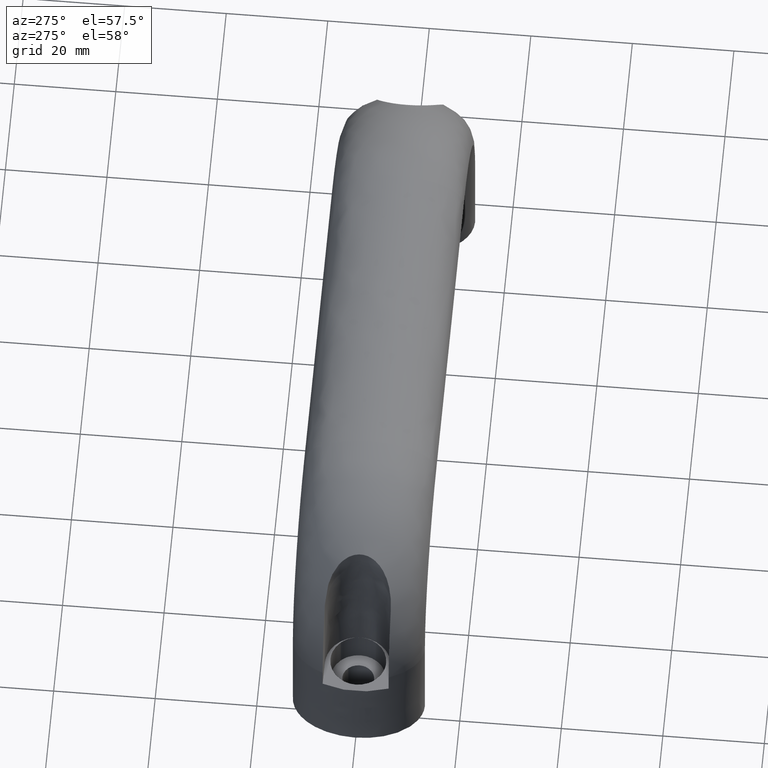
[diagram: clean part render]
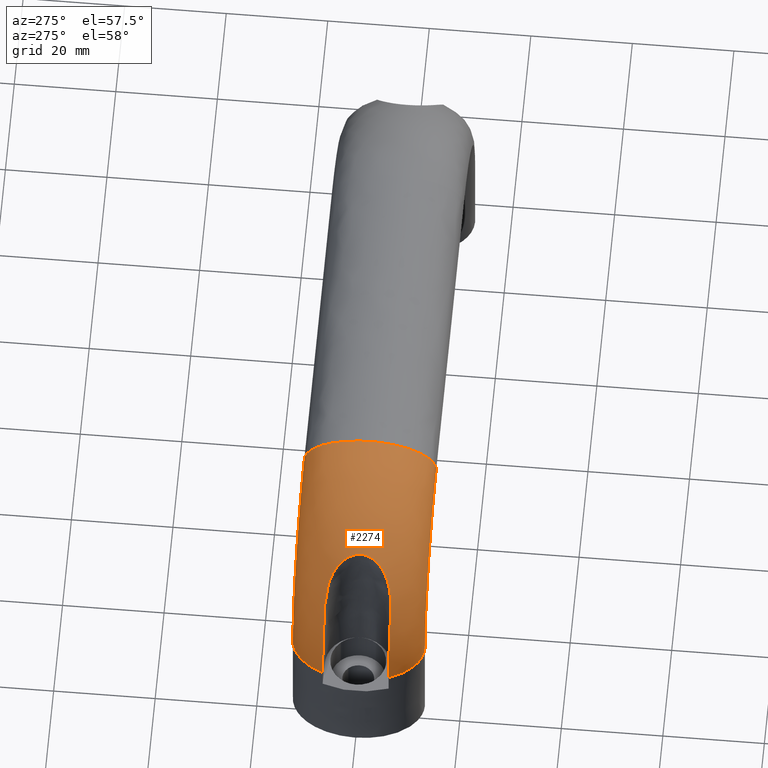
[diagram: same view with one face highlighted and labeled with its STEP entity id]
A machine part, auxiliary view. The second image highlights one B-rep face of the part: STEP entity #2274.
In plain terms, the highlighted face is a freeform B-spline surface patch.
Its self-contained STEP definition (entity closure, byte-faithful):
#1174=CARTESIAN_POINT('',(-5.853663334117329,-6.499999999999459,21.0));
#1175=VERTEX_POINT('',#1174);
#1181=CARTESIAN_POINT('',(-1.000000340339208,-6.500000000000000,38.182549847192597));
#1182=VERTEX_POINT('',#1181);
#1183=CARTESIAN_POINT('',(-5.853663334117329,-6.499999999999459,21.0));
#1184=CARTESIAN_POINT('',(-5.853663334118006,-6.499999999999584,25.301237633519730));
#1185=CARTESIAN_POINT('',(-4.998570350841812,-6.499999999999717,29.599377028204110));
#1186=CARTESIAN_POINT('',(-2.691898080268570,-6.499999999999898,35.168176507776849));
#1187=CARTESIAN_POINT('',(-1.903660305799363,-6.499999999999949,36.710772062103693));
#1188=CARTESIAN_POINT('',(-1.000000340339208,-6.500000000000000,38.182549847192597));
#1189=B_SPLINE_CURVE_WITH_KNOTS('',3,(#1183,#1184,#1185,#1186,#1187,#1188),.UNSPECIFIED.,.F.,.U.,(4,2,4),(0.114061865830815,0.168452139364120,0.190295225677412),.UNSPECIFIED.);
#1190=EDGE_CURVE('',#1175,#1182,#1189,.T.);
#1219=CARTESIAN_POINT('',(-1.000000340339208,6.500000000000000,38.182549847164204));
#1220=VERTEX_POINT('',#1219);
#1229=CARTESIAN_POINT('',(-1.000000340339208,6.500000000000000,38.182549847164204));
#1230=CARTESIAN_POINT('',(-0.689212819800059,6.500000016272797,38.688724930215237));
#1231=CARTESIAN_POINT('',(-0.374075039152050,6.477785489742370,39.187420523620602));
#1232=CARTESIAN_POINT('',(0.262488260931114,6.384325359718156,40.170530579333388));
#1233=CARTESIAN_POINT('',(0.583925252683703,6.313138619210530,40.654949402668663));
#1234=CARTESIAN_POINT('',(1.230995051490858,6.114507299176249,41.609429837873002));
#1235=CARTESIAN_POINT('',(1.556647177267556,5.987184864617493,42.079503514974839));
#1236=CARTESIAN_POINT('',(2.046602365477647,5.744686316475324,42.773056789216007));
#1237=CARTESIAN_POINT('',(2.210164333353672,5.655218039730497,43.002306576821418));
#1238=CARTESIAN_POINT('',(2.455602974931447,5.506175588432599,43.343073584307412));
#1239=CARTESIAN_POINT('',(2.537431224066661,5.454015233107734,43.456143759502481));
#1240=CARTESIAN_POINT('',(2.701064075595249,5.344326574631365,43.681199155961188));
#1241=CARTESIAN_POINT('',(2.782462926104098,5.287066613627396,43.792625824429692));
#1242=CARTESIAN_POINT('',(3.024917935715405,5.107879429656031,44.123028648877572));
#1243=CARTESIAN_POINT('',(3.184384601761754,4.978481909081930,44.338334925381822));
#1244=CARTESIAN_POINT('',(3.497890522714100,4.697162703185287,44.758082049808401));
#1245=CARTESIAN_POINT('',(3.651937882009365,4.545261192519825,44.962530213740642));
#1246=CARTESIAN_POINT('',(3.877792939857300,4.297629274082391,45.259996110071832));
#1247=CARTESIAN_POINT('',(3.952376915882346,4.211552455401861,45.357836290725643));
#1248=CARTESIAN_POINT('',(4.098180596006499,4.033827687453701,45.548408745787412));
#1249=CARTESIAN_POINT('',(4.169506678531061,3.942084983980294,45.641282978532537));
#1250=CARTESIAN_POINT('',(4.378352346568787,3.657684966939383,45.912314188026208));
#1251=CARTESIAN_POINT('',(4.510778420456677,3.455918769203266,46.082928889690301));
#1252=CARTESIAN_POINT('',(4.759114404045350,3.024012999280668,46.401169422606444));
#1253=CARTESIAN_POINT('',(4.875061940803711,2.793933779644034,46.548842216368477));
#1254=CARTESIAN_POINT('',(5.006838383239718,2.484435310278997,46.716008080503919));
#1255=CARTESIAN_POINT('',(5.032522817386089,2.421428612553041,46.748553447625888));
#1256=CARTESIAN_POINT('',(5.081985477336311,2.294362813820903,46.811168827993320));
#1257=CARTESIAN_POINT('',(5.105829370602249,2.230153760895030,46.841322202151169));
#1258=CARTESIAN_POINT('',(5.174618263543223,2.035446314723961,46.928240773261450));
#1259=CARTESIAN_POINT('',(5.216825030205966,1.902871255317507,46.981470758664223));
#1260=CARTESIAN_POINT('',(5.293407149587009,1.631826865827169,47.077943708607798));
#1261=CARTESIAN_POINT('',(5.327784210271009,1.493358854146965,47.121188941667583));
#1262=CARTESIAN_POINT('',(5.372959001766256,1.280873522855859,47.177980241465448));
#1263=CARTESIAN_POINT('',(5.386950683721111,1.209246715532792,47.195562586542643));
#1264=CARTESIAN_POINT('',(5.412693724130936,1.064319433160781,47.227904645716379));
#1265=CARTESIAN_POINT('',(5.424395383722931,0.991255849456206,47.242601935386261));
#1266=CARTESIAN_POINT('',(5.476510816180594,0.626031098082335,47.308052846437363));
#1267=CARTESIAN_POINT('',(5.498365438288885,0.331247702451536,47.335504732420297));
#1268=CARTESIAN_POINT('',(5.500685471526752,-0.114926075149209,47.338422369673040));
#1269=CARTESIAN_POINT('',(5.496364551257758,-0.264319932602838,47.332987927375378));
#1270=CARTESIAN_POINT('',(5.481982390204752,-0.489447285684390,47.314921560174852));
#1271=CARTESIAN_POINT('',(5.475893475569631,-0.564221561934636,47.307274283291918));
#1272=CARTESIAN_POINT('',(5.461271999545220,-0.712394852430750,47.288912449287992));
#1273=CARTESIAN_POINT('',(5.452730908116130,-0.785931328544100,47.278187167378583));
#1274=CARTESIAN_POINT('',(5.404069381569491,-1.150948725288272,47.217077024028718));
#1275=CARTESIAN_POINT('',(5.346175699317252,-1.434481806671780,47.144381478564902));
#1276=CARTESIAN_POINT('',(5.252178206605093,-1.779149495292529,47.026011038114362));
#1277=CARTESIAN_POINT('',(5.232299506900318,-1.847536294668584,47.000963402534389));
#1278=CARTESIAN_POINT('',(5.190859232061210,-1.981971107920071,46.948707657315531));
#1279=CARTESIAN_POINT('',(5.169249851015953,-2.048199982293408,46.921439361182372));
#1280=CARTESIAN_POINT('',(5.101901658509220,-2.244073019501732,46.836379958425908));
#1281=CARTESIAN_POINT('',(5.053647766449441,-2.370909197318161,46.775340853699873));
#1282=CARTESIAN_POINT('',(4.899788969603933,-2.741156128875241,46.580279871892103));
#1283=CARTESIAN_POINT('',(4.785133665016351,-2.974358450601278,46.434376539548943));
#1284=CARTESIAN_POINT('',(4.628961360989541,-3.250973735458134,46.234397793145327));
#1285=CARTESIAN_POINT('',(4.597072577991827,-3.305552547935962,46.193506610032003));
#1286=CARTESIAN_POINT('',(4.532535432686103,-3.412469893866728,46.110623038849852));
#1287=CARTESIAN_POINT('',(4.499828152460424,-3.464915281169077,46.068555289393252));
#1288=CARTESIAN_POINT('',(4.400474538803194,-3.619373592886223,45.940563372272273));
#1289=CARTESIAN_POINT('',(4.332598966671378,-3.718513981948061,45.852853640924202));
#1290=CARTESIAN_POINT('',(4.124619641980001,-4.005509383118658,45.583160606391232));
#1291=CARTESIAN_POINT('',(3.980187428753045,-4.182989510816854,45.394643276441450));
#1292=CARTESIAN_POINT('',(3.681987254477161,-4.514273299438989,45.002282988161483));
#1293=CARTESIAN_POINT('',(3.528149336353248,-4.668105271653232,44.798348338777913));
#1294=CARTESIAN_POINT('',(3.212914745457522,-4.954461886730045,44.376737959463703));
#1295=CARTESIAN_POINT('',(3.053599763602717,-5.085126641572438,44.161847748087069));
#1296=CARTESIAN_POINT('',(2.572016949189415,-5.445312748777830,43.506308444617332));
#1297=CARTESIAN_POINT('',(2.246173655385827,-5.643332864112722,43.054876009694489));
#1298=CARTESIAN_POINT('',(1.753972342858077,-5.890615302223248,42.359115872606168));
#1299=CARTESIAN_POINT('',(1.589311902334279,-5.964654037302544,42.124067386135899));
#1300=CARTESIAN_POINT('',(1.341773296146987,-6.064157510117549,41.766992764913432));
#1301=CARTESIAN_POINT('',(1.259168528611842,-6.095396220738266,41.647216571663392));
#1302=CARTESIAN_POINT('',(1.093826840812898,-6.154151987817073,41.406182424019562));
#1303=CARTESIAN_POINT('',(1.011118158348042,-6.181654249835973,41.284963918348240));
#1304=CARTESIAN_POINT('',(0.599112002362051,-6.309672652816409,40.677795653967912));
#1305=CARTESIAN_POINT('',(0.272999800482566,-6.382418834764922,40.186583435192162));
#1306=CARTESIAN_POINT('',(-0.370530576990195,-6.477620467416236,39.193071878377133));
#1307=CARTESIAN_POINT('',(-0.687957252026364,-6.500000016338412,38.690769855087943));
#1308=CARTESIAN_POINT('',(-1.000000340339208,-6.500000000000000,38.182549847192597));
#1309=B_SPLINE_CURVE_WITH_KNOTS('',3,(#1229,#1230,#1231,#1232,#1233,#1234,#1235,#1236,#1237,#1238,#1239,#1240,#1241,#1242,#1243,#1244,#1245,#1246,#1247,#1248,#1249,#1250,#1251,#1252,#1253,#1254,#1255,#1256,#1257,#1258,#1259,#1260,#1261,#1262,#1263,#1264,#1265,#1266,#1267,#1268,#1269,#1270,#1271,#1272,#1273,#1274,#1275,#1276,#1277,#1278,#1279,#1280,#1281,#1282,#1283,#1284,#1285,#1286,#1287,#1288,#1289,#1290,#1291,#1292,#1293,#1294,#1295,#1296,#1297,#1298,#1299,#1300,#1301,#1302,#1303,#1304,#1305,#1306,#1307,#1308),.UNSPECIFIED.,.F.,.U.,(4,2,2,2,2,2,2,2,2,2,2,2,2,2,2,2,2,2,2,2,2,2,2,2,2,2,2,2,2,2,2,2,2,2,2,2,2,2,2,4),(0.0,0.062500000000002,0.125000000000004,0.187500000000006,0.218750000000007,0.234375000000008,0.250000000000008,0.281250000000008,0.312500000000009,0.328125000000008,0.343750000000008,0.375000000000008,0.406250000000008,0.414062500000008,0.421875000000008,0.437500000000007,0.453125000000007,0.460937500000007,0.468750000000007,0.500000000000007,0.515625000000007,0.523437500000007,0.531250000000007,0.562500000000007,0.570312500000007,0.578125000000007,0.593750000000007,0.625000000000007,0.632812500000007,0.640625000000006,0.656250000000006,0.687500000000005,0.718750000000004,0.750000000000004,0.812500000000002,0.843750000000001,0.859375000000001,0.875000000000001,0.937500000000001,1.0),.UNSPECIFIED.);
#1310=EDGE_CURVE('',#1220,#1182,#1309,.T.);
#1320=CARTESIAN_POINT('',(-5.853663334117170,6.499999999999920,21.0));
#1321=VERTEX_POINT('',#1320);
#1329=CARTESIAN_POINT('',(-1.000000340339208,6.500000000000000,38.182549847164204));
#1330=CARTESIAN_POINT('',(-1.903660305797410,6.499999999999993,36.710772062079663));
#1331=CARTESIAN_POINT('',(-2.691898080265173,6.499999999999985,35.168176507758460));
#1332=CARTESIAN_POINT('',(-4.998570350838891,6.499999999999958,29.599377028203190));
#1333=CARTESIAN_POINT('',(-5.853663334116508,6.499999999999939,25.301237633511491));
#1334=CARTESIAN_POINT('',(-5.853663334117170,6.499999999999920,21.0));
#1335=B_SPLINE_CURVE_WITH_KNOTS('',3,(#1329,#1330,#1331,#1332,#1333,#1334),.UNSPECIFIED.,.F.,.U.,(4,2,4),(0.114061865830815,0.135904952144058,0.190295225677363),.UNSPECIFIED.);
#1336=EDGE_CURVE('',#1220,#1321,#1335,.T.);
#1974=CARTESIAN_POINT('',(27.0,13.0,46.500000000000000));
#1975=VERTEX_POINT('',#1974);
#1981=CARTESIAN_POINT('',(27.0,-13.0,46.500000000000000));
#1982=VERTEX_POINT('',#1981);
#1983=CARTESIAN_POINT('',(27.0,13.0,46.500000000000000));
#1984=CARTESIAN_POINT('',(27.0,13.0,47.612647398146400));
#1985=CARTESIAN_POINT('',(27.0,12.661644796688099,48.724857017053907));
#1986=CARTESIAN_POINT('',(27.0,11.359223048605360,50.780761333152697));
#1987=CARTESIAN_POINT('',(27.0,10.395668951176340,51.723647119786797));
#1988=CARTESIAN_POINT('',(27.0,6.785826563922671,54.083928680683393));
#1989=CARTESIAN_POINT('',(27.0,3.403392041388941,55.0));
#1990=CARTESIAN_POINT('',(27.0,-3.403392041388945,55.0));
#1991=CARTESIAN_POINT('',(27.0,-6.785826563922671,54.083928680683393));
#1992=CARTESIAN_POINT('',(27.0,-10.395668951176340,51.723647119786797));
#1993=CARTESIAN_POINT('',(27.0,-11.359223048605340,50.780761333152697));
#1994=CARTESIAN_POINT('',(27.0,-12.661644796688099,48.724857017053907));
#1995=CARTESIAN_POINT('',(27.0,-13.0,47.612647398146400));
#1996=CARTESIAN_POINT('',(27.0,-13.0,46.500000000000000));
#1997=B_SPLINE_CURVE_WITH_KNOTS('',3,(#1983,#1984,#1985,#1986,#1987,#1988,#1989,#1990,#1991,#1992,#1993,#1994,#1995,#1996),.UNSPECIFIED.,.F.,.U.,(4,2,2,2,2,2,4),(0.500000000000000,0.562500000000000,0.625000000000000,0.750000000000000,0.875000000000000,0.937500000000000,1.0),.UNSPECIFIED.);
#1998=EDGE_CURVE('',#1975,#1982,#1997,.T.);
#2089=CARTESIAN_POINT('',(1.767035375555479,13.0,20.603576711878649));
#2090=CARTESIAN_POINT('',(1.678021180663322,12.999001277163620,20.602178251556850));
#2091=CARTESIAN_POINT('',(0.476429468037548,13.027045414409260,20.583300606984132));
#2092=CARTESIAN_POINT('',(-1.837471083550217,12.323036565618370,20.546947999246800));
#2093=CARTESIAN_POINT('',(-3.723728010842499,10.395617706442160,20.517313900182891));
#2094=CARTESIAN_POINT('',(-6.083928680683409,6.785826563922671,20.480233892974731));
#2095=CARTESIAN_POINT('',(-7.0,3.403392041388941,20.465841925563179));
#2096=CARTESIAN_POINT('',(-7.0,-3.403392041388945,20.465841925563179));
#2097=CARTESIAN_POINT('',(-6.083928680683409,-6.785826563922671,20.480233892973679));
#2098=CARTESIAN_POINT('',(-3.723728010842494,-10.395617706442160,20.517313900182891));
#2099=CARTESIAN_POINT('',(-1.837471083550220,-12.323036565618350,20.546947999246811));
#2100=CARTESIAN_POINT('',(0.476429468037551,-13.027045414409271,20.583300606984132));
#2101=CARTESIAN_POINT('',(1.678021180663325,-12.999001277163620,20.602178251556850));
#2102=CARTESIAN_POINT('',(1.767035375555484,-13.0,20.603576711878649));
#2103=CARTESIAN_POINT('',(1.767539756979690,13.0,20.735715980405431));
#2104=CARTESIAN_POINT('',(1.678527341391197,12.999001277163620,20.734783667077320));
#2105=CARTESIAN_POINT('',(0.476959647367612,13.027045414409271,20.722198483669459));
#2106=CARTESIAN_POINT('',(-1.836894651690059,12.323036565618370,20.697963244258851));
#2107=CARTESIAN_POINT('',(-3.723113874615471,10.395617706442160,20.678207041602871));
#2108=CARTESIAN_POINT('',(-6.083267366433782,6.785826563922671,20.653486865858380));
#2109=CARTESIAN_POINT('',(-6.999320374411870,3.403392041388941,20.643892154570288));
#2110=CARTESIAN_POINT('',(-6.999320374411870,-3.403392041388945,20.643892154570288));
#2111=CARTESIAN_POINT('',(-6.083267366433782,-6.785826563922671,20.653486865857669));
#2112=CARTESIAN_POINT('',(-3.723113874615466,-10.395617706442160,20.678207041602871));
#2113=CARTESIAN_POINT('',(-1.836894651690062,-12.323036565618350,20.697963244258851));
#2114=CARTESIAN_POINT('',(0.476959647367614,-13.027045414409271,20.722198483669459));
#2115=CARTESIAN_POINT('',(1.678527341391200,-12.999001277163620,20.734783667077330));
#2116=CARTESIAN_POINT('',(1.767539756979695,-13.0,20.735715980405431));
#2117=CARTESIAN_POINT('',(1.740750076788786,13.0,24.171189757936951));
#2118=CARTESIAN_POINT('',(1.651643155388207,12.999001277163620,24.182376747153430));
#2119=CARTESIAN_POINT('',(0.448799738984256,13.027045414409260,24.333388544182220));
#2120=CARTESIAN_POINT('',(-1.867511213768556,12.323036565618370,24.624191382424410));
#2121=CARTESIAN_POINT('',(-3.755733063836252,10.395617706442160,24.861249482323149));
#2122=CARTESIAN_POINT('',(-6.118392365893656,6.785826563922671,25.157871155687349));
#2123=CARTESIAN_POINT('',(-7.035417961043546,3.403392041388941,25.272999759425431));
#2124=CARTESIAN_POINT('',(-7.035417961043546,-3.403392041388945,25.272999759425431));
#2125=CARTESIAN_POINT('',(-6.118392365893656,-6.785826563922671,25.157871155689580));
#2126=CARTESIAN_POINT('',(-3.755733063836144,-10.395617706442160,24.861249482321892));
#2127=CARTESIAN_POINT('',(-1.867511213768617,-12.323036565618350,24.624191382424559));
#2128=CARTESIAN_POINT('',(0.448799738983944,-13.027045414409271,24.333388544181929));
#2129=CARTESIAN_POINT('',(1.651643155387899,-12.999001277163620,24.182376747153430));
#2130=CARTESIAN_POINT('',(1.740750076788479,-13.0,24.171189757936940));
#2131=CARTESIAN_POINT('',(3.080691007395415,13.0,30.907270620796851));
#2132=CARTESIAN_POINT('',(2.996310988477970,12.999001277163609,30.942220446590710));
#2133=CARTESIAN_POINT('',(1.857275449649357,13.027045414409260,31.414003863634019));
#2134=CARTESIAN_POINT('',(-0.336160918027275,12.323036565618370,32.322515380035767));
#2135=CARTESIAN_POINT('',(-2.124217254445214,10.395617706442160,33.063120303677103));
#2136=CARTESIAN_POINT('',(-4.361543305772737,6.785826563922671,33.989810730410063));
#2137=CARTESIAN_POINT('',(-5.229922954066043,3.403392041388939,34.349489690198340));
#2138=CARTESIAN_POINT('',(-5.229922954066043,-3.403392041388945,34.349489690198340));
#2139=CARTESIAN_POINT('',(-4.361543305772737,-6.785826563922671,33.989810730414277));
#2140=CARTESIAN_POINT('',(-2.124217254445727,-10.395617706442151,33.063120303683363));
#2141=CARTESIAN_POINT('',(-0.336160918026990,-12.323036565618340,32.322515380035043));
#2142=CARTESIAN_POINT('',(1.857275449649567,-13.027045414409280,31.414003863635472));
#2143=CARTESIAN_POINT('',(2.996310988478979,-12.999001277163609,30.942220446590682));
#2144=CARTESIAN_POINT('',(3.080691007396472,-13.0,30.907270620796869));
#2145=CARTESIAN_POINT('',(8.693076710654562,13.0,39.306917409097821));
#2146=CARTESIAN_POINT('',(8.628495474885888,12.999001277163609,39.371498624122772));
#2147=CARTESIAN_POINT('',(7.756721284434724,13.027045414409260,40.243272534556610));
#2148=CARTESIAN_POINT('',(6.077949070088543,12.323036565618370,41.922044209679001));
#2149=CARTESIAN_POINT('',(4.709439210629514,10.395617706442160,43.290553629566432));
#2150=CARTESIAN_POINT('',(2.997075512850917,6.785826563922671,45.002916777329233));
#2151=CARTESIAN_POINT('',(2.332450978242404,3.403392041388941,45.667541098456759));
#2152=CARTESIAN_POINT('',(2.332450978242404,-3.403392041388945,45.667541098456759));
#2153=CARTESIAN_POINT('',(2.997075512850917,-6.785826563922671,45.002916777324486));
#2154=CARTESIAN_POINT('',(4.709439210629517,-10.395617706442151,43.290553629564542));
#2155=CARTESIAN_POINT('',(6.077949070088537,-12.323036565618350,41.922044209677708));
#2156=CARTESIAN_POINT('',(7.756721284434554,-13.027045414409271,40.243272534555828));
#2157=CARTESIAN_POINT('',(8.628495474885231,-12.999001277163609,39.371498624122779));
#2158=CARTESIAN_POINT('',(8.693076710653868,-13.0,39.306917409097821));
#2159=CARTESIAN_POINT('',(17.092723016936571,13.0,44.919259231619222));
#2160=CARTESIAN_POINT('',(17.057773168698539,12.999001277163620,45.003639074995156));
#2161=CARTESIAN_POINT('',(16.585989448683460,13.027045414409271,46.142672244212143));
#2162=CARTESIAN_POINT('',(15.677477348854570,12.323036565618370,48.336104048719591));
#2163=CARTESIAN_POINT('',(14.936871949606079,10.395617706442160,50.124156665329863));
#2164=CARTESIAN_POINT('',(14.010180927772090,6.785826563922671,52.361478062188340));
#2165=CARTESIAN_POINT('',(13.650501737008080,3.403392041388941,53.229855903929810));
#2166=CARTESIAN_POINT('',(13.650501737008080,-3.403392041388945,53.229855903929810));
#2167=CARTESIAN_POINT('',(14.010180927772090,-6.785826563922671,52.361478062194337));
#2168=CARTESIAN_POINT('',(14.936871949606619,-10.395617706442160,50.124156665328492));
#2169=CARTESIAN_POINT('',(15.677477348854280,-12.323036565618350,48.336104048724003));
#2170=CARTESIAN_POINT('',(16.585989448683659,-13.027045414409280,46.142672244212747));
#2171=CARTESIAN_POINT('',(17.057773168698919,-12.999001277163620,45.003639074995142));
#2172=CARTESIAN_POINT('',(17.092723016936969,-13.0,44.919259231619193));
#2173=CARTESIAN_POINT('',(23.828811523988559,13.0,46.259259949446147));
#2174=CARTESIAN_POINT('',(23.817624539294361,12.999001277163609,46.348366906216199));
#2175=CARTESIAN_POINT('',(23.666612803311288,13.027045414409260,47.551210800067857));
#2176=CARTESIAN_POINT('',(23.375810082622770,12.323036565618370,49.867522672249549));
#2177=CARTESIAN_POINT('',(23.138752078553239,10.395617706442160,51.755745271810518));
#2178=CARTESIAN_POINT('',(22.842130525094259,6.785826563922671,54.118405511688117));
#2179=CARTESIAN_POINT('',(22.727001967897149,3.403392041388941,55.035431470836492));
#2180=CARTESIAN_POINT('',(22.727001967897149,-3.403392041388945,55.035431470836492));
#2181=CARTESIAN_POINT('',(22.842130525094259,-6.785826563922671,54.118405511682710));
#2182=CARTESIAN_POINT('',(23.138752078553139,-10.395617706442151,51.755745271807839));
#2183=CARTESIAN_POINT('',(23.375810082622831,-12.323036565618350,49.867522672246558));
#2184=CARTESIAN_POINT('',(23.666612803311249,-13.027045414409280,47.551210800066507));
#2185=CARTESIAN_POINT('',(23.817624539295171,-12.999001277163609,46.348366906216242));
#2186=CARTESIAN_POINT('',(23.828811523989430,-13.0,46.259259949446140));
#2187=CARTESIAN_POINT('',(27.264284019593251,13.0,46.232460243020299));
#2188=CARTESIAN_POINT('',(27.265216332921341,12.999001277163620,46.321472658608798));
#2189=CARTESIAN_POINT('',(27.277801516329070,13.027045414409260,47.523040352632393));
#2190=CARTESIAN_POINT('',(27.302036755739650,12.323036565618370,49.836894651690130));
#2191=CARTESIAN_POINT('',(27.321792958395609,10.395617706442160,51.723113874615493));
#2192=CARTESIAN_POINT('',(27.346513134140199,6.785826563922671,54.083267366433773));
#2193=CARTESIAN_POINT('',(27.356107845427790,3.403392041388941,54.999320374411873));
#2194=CARTESIAN_POINT('',(27.356107845427790,-3.403392041388945,54.999320374411873));
#2195=CARTESIAN_POINT('',(27.346513134140199,-6.785826563922671,54.083267366433759));
#2196=CARTESIAN_POINT('',(27.321792958395609,-10.395617706442160,51.723113874615493));
#2197=CARTESIAN_POINT('',(27.302036755739650,-12.323036565618350,49.836894651690137));
#2198=CARTESIAN_POINT('',(27.277801516329070,-13.027045414409271,47.523040352632371));
#2199=CARTESIAN_POINT('',(27.265216332921138,-12.999001277163620,46.321472658608798));
#2200=CARTESIAN_POINT('',(27.264284019593021,-13.0,46.232460243020292));
#2201=CARTESIAN_POINT('',(27.396423288119429,13.0,46.232964624444513));
#2202=CARTESIAN_POINT('',(27.397821748441210,12.999001277163620,46.321978819336671));
#2203=CARTESIAN_POINT('',(27.416699393013729,13.027045414409260,47.523570531962463));
#2204=CARTESIAN_POINT('',(27.453052000751001,12.323036565618370,49.837471083550277));
#2205=CARTESIAN_POINT('',(27.482686099814892,10.395617706442160,51.723728010842507));
#2206=CARTESIAN_POINT('',(27.519766107023209,6.785826563922671,54.083928680683393));
#2207=CARTESIAN_POINT('',(27.534158074434021,3.403392041388941,55.0));
#2208=CARTESIAN_POINT('',(27.534158074434021,-3.403392041388945,55.0));
#2209=CARTESIAN_POINT('',(27.519766107023209,-6.785826563922671,54.083928680683393));
#2210=CARTESIAN_POINT('',(27.482686099814892,-10.395617706442160,51.723728010842507));
#2211=CARTESIAN_POINT('',(27.453052000751029,-12.323036565618350,49.837471083550291));
#2212=CARTESIAN_POINT('',(27.416699393013719,-13.027045414409271,47.523570531962427));
#2213=CARTESIAN_POINT('',(27.397821748440919,-12.999001277163620,46.321978819336671));
#2214=CARTESIAN_POINT('',(27.396423288119109,-13.0,46.232964624444513));
#2215=B_SPLINE_SURFACE_WITH_KNOTS('',3,3,((#2089,#2103,#2117,#2131,#2145,#2159,#2173,#2187,#2201),(#2090,#2104,#2118,#2132,#2146,#2160,#2174,#2188,#2202),(#2091,#2105,#2119,#2133,#2147,#2161,#2175,#2189,#2203),(#2092,#2106,#2120,#2134,#2148,#2162,#2176,#2190,#2204),(#2093,#2107,#2121,#2135,#2149,#2163,#2177,#2191,#2205),(#2094,#2108,#2122,#2136,#2150,#2164,#2178,#2192,#2206),(#2095,#2109,#2123,#2137,#2151,#2165,#2179,#2193,#2207),(#2096,#2110,#2124,#2138,#2152,#2166,#2180,#2194,#2208),(#2097,#2111,#2125,#2139,#2153,#2167,#2181,#2195,#2209),(#2098,#2112,#2126,#2140,#2154,#2168,#2182,#2196,#2210),(#2099,#2113,#2127,#2141,#2155,#2169,#2183,#2197,#2211),(#2100,#2114,#2128,#2142,#2156,#2170,#2184,#2198,#2212),(#2101,#2115,#2129,#2143,#2157,#2171,#2185,#2199,#2213),(#2102,#2116,#2130,#2144,#2158,#2172,#2186,#2200,#2214)),.UNSPECIFIED.,.F.,.F.,.U.,(4,1,1,2,2,2,1,1,4),(4,1,1,1,1,1,4),(0.0,0.400140751270800,5.401900142149207,10.403659533027620,20.407178314784431,30.410697096541249,35.412456487419661,40.414215878298073,40.814356629568870),(0.0,0.529507802119197,13.767202855099120,27.004897908079041,40.242592961058961,53.480288014038877,54.009795816158082),.UNSPECIFIED.);
#2216=CARTESIAN_POINT('',(1.499999999999997,13.0,21.0));
#2217=VERTEX_POINT('',#2216);
#2218=CARTESIAN_POINT('',(1.499999999999995,13.0,21.0));
#2219=CARTESIAN_POINT('',(1.499999999999995,13.0,24.338487965230129));
#2220=CARTESIAN_POINT('',(2.163696795447097,13.0,27.674571173055529));
#2221=CARTESIAN_POINT('',(4.718447046477275,13.0,33.842283877564071));
#2222=CARTESIAN_POINT('',(6.608495612154606,13.0,36.670941452656983));
#2223=CARTESIAN_POINT('',(11.329058547331501,13.0,41.391504387857033));
#2224=CARTESIAN_POINT('',(14.157716122457829,13.0,43.281552953528532));
#2225=CARTESIAN_POINT('',(20.325428826922629,13.0,45.836303204547150));
#2226=CARTESIAN_POINT('',(23.661512034786298,13.0,46.500000000000000));
#2227=CARTESIAN_POINT('',(27.0,13.0,46.500000000000000));
#2228=B_SPLINE_CURVE_WITH_KNOTS('',3,(#2218,#2219,#2220,#2221,#2222,#2223,#2224,#2225,#2226,#2227),.UNSPECIFIED.,.F.,.U.,(4,2,2,2,4),(0.114061865830815,0.168452139364120,0.222842412897425,0.277232686430730,0.331622959964035),.UNSPECIFIED.);
#2229=EDGE_CURVE('',#2217,#1975,#2228,.T.);
#2230=ORIENTED_EDGE('',*,*,#2229,.F.);
#2231=CARTESIAN_POINT('',(1.500000000000005,13.0,21.0));
#2232=CARTESIAN_POINT('',(0.387352601861369,13.000000000020670,21.0));
#2233=CARTESIAN_POINT('',(-0.724857017036293,12.661644796734990,21.0));
#2234=CARTESIAN_POINT('',(-2.780761333112706,11.359223048711820,21.0));
#2235=CARTESIAN_POINT('',(-3.723647119734331,10.395668951316130,21.0));
#2236=CARTESIAN_POINT('',(-5.034186361965656,8.391314816163206,21.0));
#2237=CARTESIAN_POINT('',(-5.485117837588514,7.482112058636690,21.0));
#2238=CARTESIAN_POINT('',(-5.853663334117170,6.499999999999920,21.0));
#2239=B_SPLINE_CURVE_WITH_KNOTS('',3,(#2231,#2232,#2233,#2234,#2235,#2236,#2237,#2238),.UNSPECIFIED.,.F.,.U.,(4,2,2,4),(0.800041661561315,0.875052076952158,0.950062492343001,1.0),.UNSPECIFIED.);
#2240=EDGE_CURVE('',#2217,#1321,#2239,.T.);
#2241=ORIENTED_EDGE('',*,*,#2240,.T.);
#2242=ORIENTED_EDGE('',*,*,#1336,.F.);
#2243=ORIENTED_EDGE('',*,*,#1310,.T.);
#2244=ORIENTED_EDGE('',*,*,#1190,.F.);
#2245=CARTESIAN_POINT('',(1.499999999999996,-13.0,21.0));
#2246=VERTEX_POINT('',#2245);
#2247=CARTESIAN_POINT('',(-5.853663334117329,-6.499999999999459,21.0));
#2248=CARTESIAN_POINT('',(-5.485117837596882,-7.482112058566172,21.0));
#2249=CARTESIAN_POINT('',(-5.034186361996432,-8.391314816032166,21.0));
#2250=CARTESIAN_POINT('',(-3.723647119786780,-10.395668951176340,21.0));
#2251=CARTESIAN_POINT('',(-2.780761333152645,-11.359223048605340,21.0));
#2252=CARTESIAN_POINT('',(-0.724857017053883,-12.661644796688099,21.0));
#2253=CARTESIAN_POINT('',(0.387352601853614,-13.0,21.0));
#2254=CARTESIAN_POINT('',(1.500000000000000,-13.0,21.0));
#2255=B_SPLINE_CURVE_WITH_KNOTS('',3,(#2247,#2248,#2249,#2250,#2251,#2252,#2253,#2254),.UNSPECIFIED.,.F.,.U.,(4,2,2,4),(0.0,0.049937507652884,0.124947923043727,0.199958338434570),.UNSPECIFIED.);
#2256=EDGE_CURVE('',#1175,#2246,#2255,.T.);
#2257=ORIENTED_EDGE('',*,*,#2256,.T.);
#2258=CARTESIAN_POINT('',(1.499999999999996,-13.0,21.0));
#2259=CARTESIAN_POINT('',(1.499999999999996,-13.0,24.338487965230119));
#2260=CARTESIAN_POINT('',(2.163696795446736,-13.0,27.674571173055519));
#2261=CARTESIAN_POINT('',(4.718447046477645,-13.0,33.842283877564078));
#2262=CARTESIAN_POINT('',(6.608495612154606,-13.0,36.670941452656983));
#2263=CARTESIAN_POINT('',(11.329058547331501,-13.0,41.391504387857019));
#2264=CARTESIAN_POINT('',(14.157716122460730,-13.0,43.281552953528518));
#2265=CARTESIAN_POINT('',(20.325428826919730,-13.0,45.836303204547150));
#2266=CARTESIAN_POINT('',(23.661512034788469,-13.0,46.500000000000000));
#2267=CARTESIAN_POINT('',(27.0,-13.0,46.500000000000000));
#2268=B_SPLINE_CURVE_WITH_KNOTS('',3,(#2258,#2259,#2260,#2261,#2262,#2263,#2264,#2265,#2266,#2267),.UNSPECIFIED.,.F.,.U.,(4,2,2,2,4),(0.114061865830815,0.168452139364120,0.222842412897425,0.277232686430730,0.331622959964035),.UNSPECIFIED.);
#2269=EDGE_CURVE('',#2246,#1982,#2268,.T.);
#2270=ORIENTED_EDGE('',*,*,#2269,.T.);
#2271=ORIENTED_EDGE('',*,*,#1998,.F.);
#2272=EDGE_LOOP('',(#2230,#2241,#2242,#2243,#2244,#2257,#2270,#2271));
#2273=FACE_OUTER_BOUND('',#2272,.T.);
#2274=ADVANCED_FACE('',(#2273),#2215,.T.);